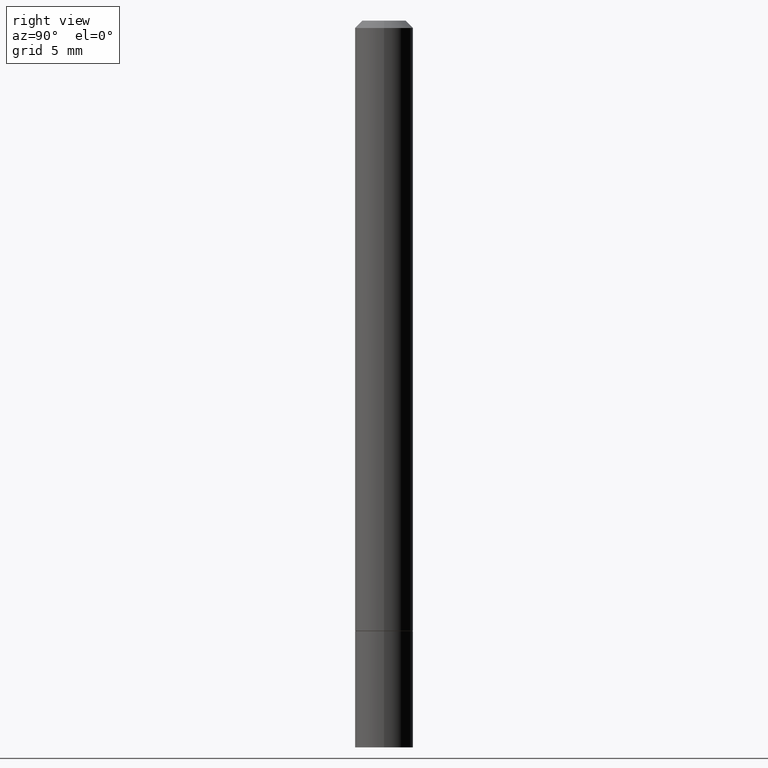
[diagram: clean part render]
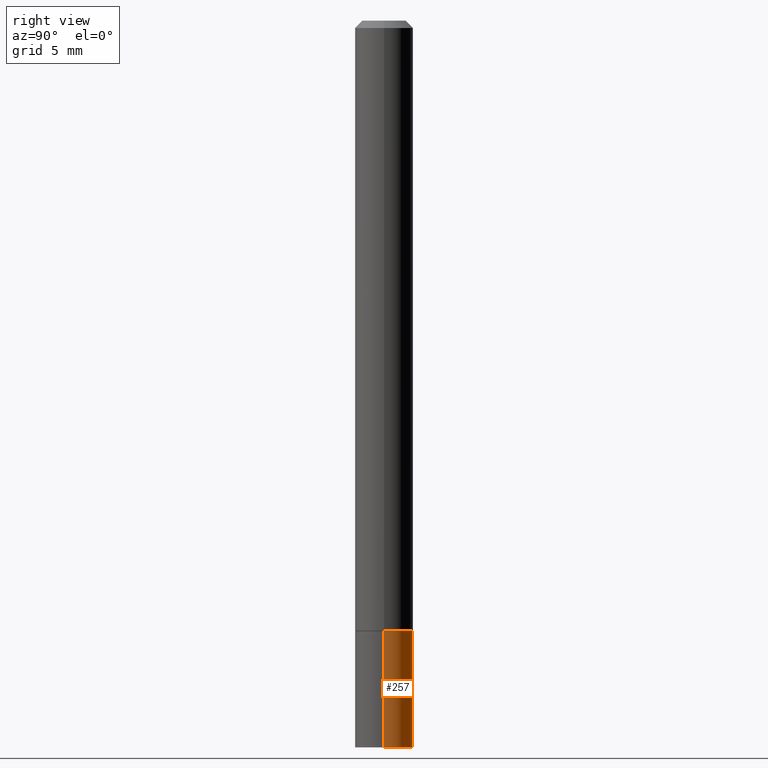
[diagram: same view with one face highlighted and labeled with its STEP entity id]
A machine part, right view. The second image highlights one B-rep face of the part: STEP entity #257.
In plain terms, the highlighted cylindrical surface (edge-blend (fillet) strip) has radius 2.0002 mm, axis along (-0, 0, 1).
Its self-contained STEP definition (entity closure, byte-faithful):
#10 = DIRECTION ( 'NONE',  ( -2.445468806185136597E-29, 3.491481338843145583E-15, 1.000000000000000000 ) ) ;
#22 = VERTEX_POINT ( 'NONE', #135 ) ;
#33 = CARTESIAN_POINT ( 'NONE',  ( 0.07875000000000000056, -5.499083108677934443E-16, 3.839989210939299016E-30 ) ) ;
#40 = VERTEX_POINT ( 'NONE', #251 ) ;
#44 = ORIENTED_EDGE ( 'NONE', *, *, #321, .F. ) ;
#55 = LINE ( 'NONE', #172, #105 ) ;
#78 = CARTESIAN_POINT ( 'NONE',  ( 0.07875000000000000056, -6.323072704644934417E-15, -1.653499999999999970 ) ) ;
#86 = CARTESIAN_POINT ( 'NONE',  ( 0.000000000000000000, 0.000000000000000000, 0.000000000000000000 ) ) ;
#91 = VERTEX_POINT ( 'NONE', #78 ) ;
#101 = ORIENTED_EDGE ( 'NONE', *, *, #132, .F. ) ;
#105 = VECTOR ( 'NONE', #200, 39.37007874015748143 ) ;
#118 = DIRECTION ( 'NONE',  ( 1.000000000000000000, -6.982962677686261977E-15, 0.000000000000000000 ) ) ;
#119 = EDGE_CURVE ( 'NONE', #40, #22, #55, .T. ) ;
#122 = DIRECTION ( 'NONE',  ( 1.000000000000000000, -6.982962677686265922E-15, 4.876176775795935232E-29 ) ) ;
#125 = DIRECTION ( 'NONE',  ( 1.000000000000000000, -6.982962677686261977E-15, 0.000000000000000000 ) ) ;
#132 = EDGE_CURVE ( 'NONE', #220, #91, #262, .T. ) ;
#135 = CARTESIAN_POINT ( 'NONE',  ( -0.07875000000000000056, -5.763520300233858771E-15, -1.653499999999999970 ) ) ;
#160 = CIRCLE ( 'NONE', #309, 0.07875000000000000056 ) ;
#168 = CIRCLE ( 'NONE', #233, 0.07875000000000000056 ) ;
#172 = CARTESIAN_POINT ( 'NONE',  ( -0.07875000000000000056, 5.595524044110789003E-16, -3.873661383575737792E-30 ) ) ;
#183 = CYLINDRICAL_SURFACE ( 'NONE', #243, 0.07875000000000000056 ) ;
#188 = ORIENTED_EDGE ( 'NONE', *, *, #119, .T. ) ;
#200 = DIRECTION ( 'NONE',  ( -2.445468806185136877E-29, 3.491481338843145188E-15, 1.000000000000000000 ) ) ;
#206 = FACE_OUTER_BOUND ( 'NONE', #279, .T. ) ;
#220 = VERTEX_POINT ( 'NONE', #258 ) ;
#233 = AXIS2_PLACEMENT_3D ( 'NONE', #235, #10, #125 ) ;
#235 = CARTESIAN_POINT ( 'NONE',  ( 4.813905344975441835E-29, -6.872981015512731707E-15, -1.968500000000000139 ) ) ;
#241 = ORIENTED_EDGE ( 'NONE', *, *, #314, .T. ) ;
#243 = AXIS2_PLACEMENT_3D ( 'NONE', #86, #327, #122 ) ;
#251 = CARTESIAN_POINT ( 'NONE',  ( -0.07875000000000000056, -5.763520300233858771E-15, -1.968500000000000139 ) ) ;
#256 = VECTOR ( 'NONE', #285, 39.37007874015748143 ) ;
#257 = ADVANCED_FACE ( 'NONE', ( #206 ), #183, .T. ) ;
#258 = CARTESIAN_POINT ( 'NONE',  ( 0.07875000000000000056, -7.422889326380525053E-15, -1.968500000000000139 ) ) ;
#262 = LINE ( 'NONE', #33, #256 ) ;
#279 = EDGE_LOOP ( 'NONE', ( #241, #188, #44, #101 ) ) ;
#285 = DIRECTION ( 'NONE',  ( -2.445468806185136877E-29, 3.491481338843145188E-15, 1.000000000000000000 ) ) ;
#309 = AXIS2_PLACEMENT_3D ( 'NONE', #352, #324, #118 ) ;
#314 = EDGE_CURVE ( 'NONE', #220, #40, #168, .T. ) ;
#321 = EDGE_CURVE ( 'NONE', #91, #22, #160, .T. ) ;
#324 = DIRECTION ( 'NONE',  ( -2.445468806185136597E-29, 3.491481338843145583E-15, 1.000000000000000000 ) ) ;
#327 = DIRECTION ( 'NONE',  ( -2.445468806185136597E-29, 3.491481338843145583E-15, 1.000000000000000000 ) ) ;
#352 = CARTESIAN_POINT ( 'NONE',  ( 4.043582671027123201E-29, -5.773164393777141072E-15, -1.653499999999999970 ) ) ;